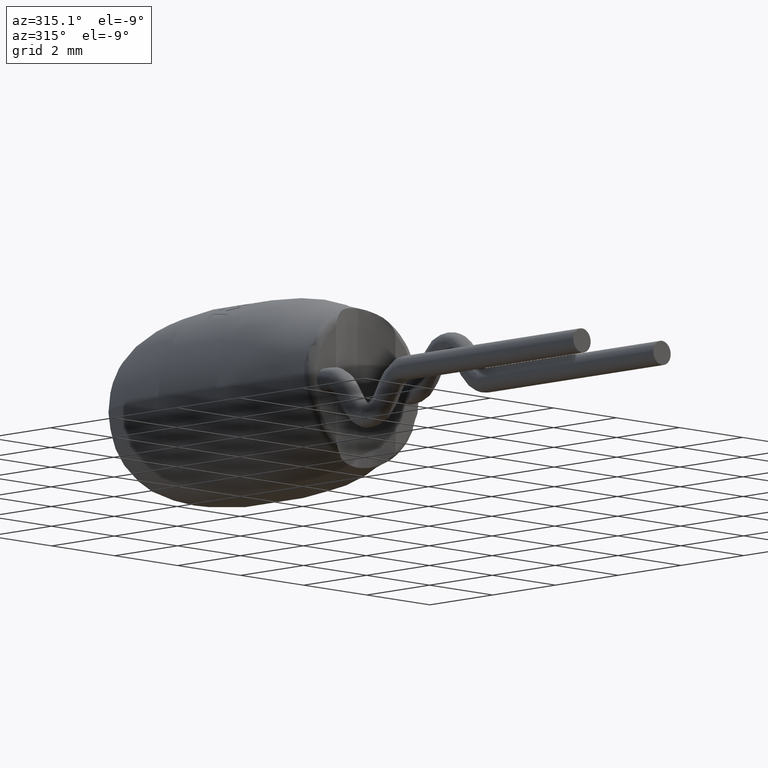
[diagram: clean part render]
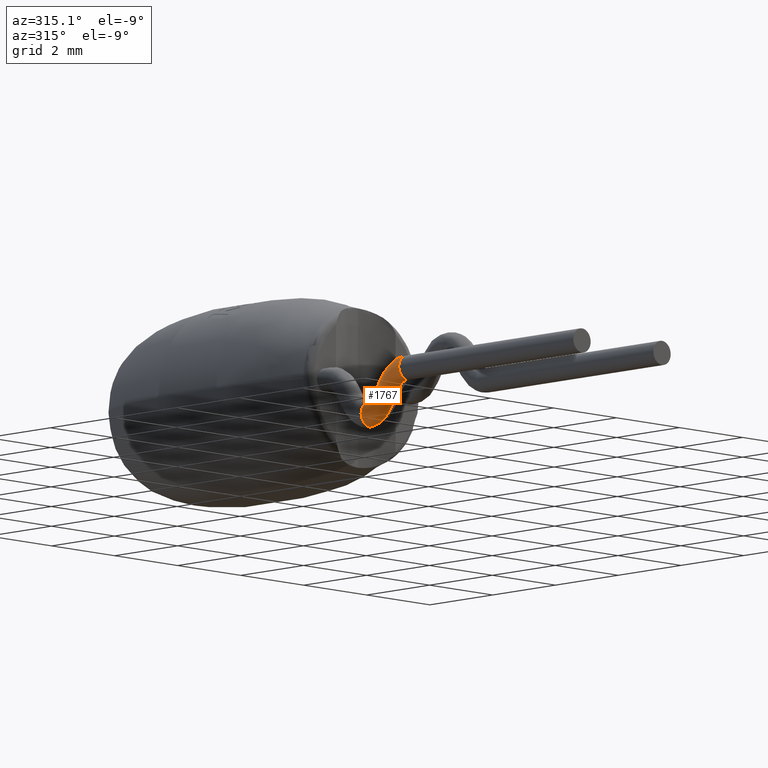
[diagram: same view with one face highlighted and labeled with its STEP entity id]
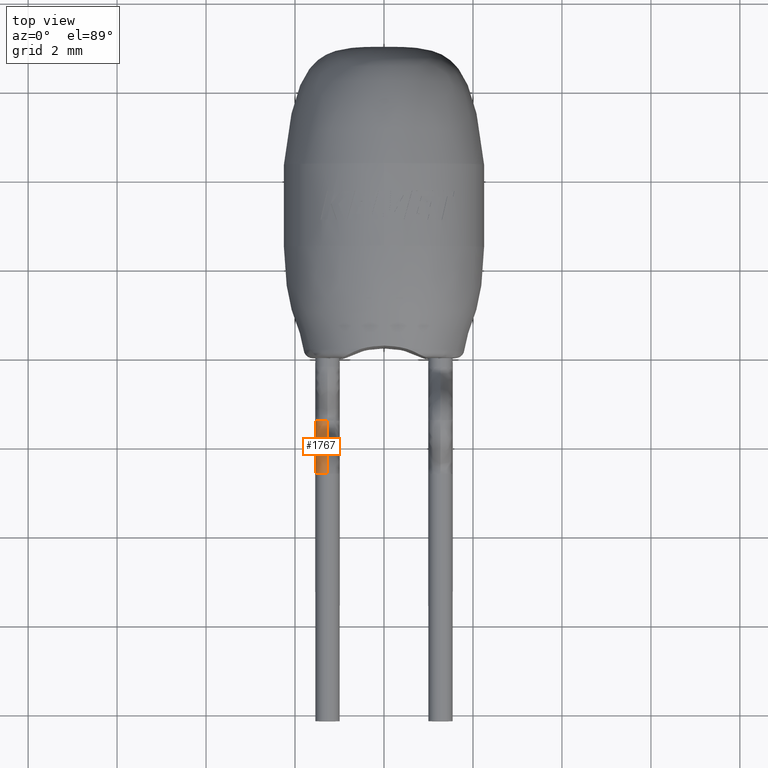
[diagram: same view with one face highlighted and labeled with its STEP entity id]
A machine part, auxiliary view. The second image highlights one B-rep face of the part: STEP entity #1767.
A second angle (top view) of the same face is appended — the face is thin or edge-on in the first view.
In plain terms, the highlighted face is a freeform B-spline surface patch.
Its self-contained STEP definition (entity closure, byte-faithful):
#65 = CARTESIAN_POINT ( 'NONE',  ( -1.270000000000000000, -2.598807271653498700, 0.2750000000000012400 ) ) ;
#96 = CARTESIAN_POINT ( 'NONE',  ( -1.270000000000000200, -2.275627969020396900, 0.2165356289625776100 ) ) ;
#279 = CARTESIAN_POINT ( 'NONE',  ( -1.270000000000000000, -2.134953701157054100, 0.1404459466004463500 ) ) ;
#282 = CARTESIAN_POINT ( 'NONE',  ( -1.820000000000001600, -1.387016746283272100, -0.6675947275303010200 ) ) ;
#324 = CARTESIAN_POINT ( 'NONE',  ( -0.7200000000000003100, -2.449029009757267300, -0.3150518116020774600 ) ) ;
#341 = CARTESIAN_POINT ( 'NONE',  ( -0.7200000000000005300, -2.012715625787380200, -0.9552707868322305500 ) ) ;
#355 = CARTESIAN_POINT ( 'NONE',  ( -1.269999999999999800, -1.498226469308707700, -0.6554652321621995400 ) ) ;
#362 = CARTESIAN_POINT ( 'NONE',  ( -1.270000000000000000, -2.328310198336086300, -0.4416513792238642700 ) ) ;
#365 = CARTESIAN_POINT ( 'NONE',  ( -1.270000000000000000, -1.387016746283271900, -0.6675947275303010200 ) ) ;
#378 = CARTESIAN_POINT ( 'NONE',  ( -0.7200000000000000800, -2.519643191152714800, -0.2803049502678690000 ) ) ;
#394 = CARTESIAN_POINT ( 'NONE',  ( -0.7200000000000002000, -1.414263253716730300, -1.217675312351784300 ) ) ;
#487 = CARTESIAN_POINT ( 'NONE',  ( -1.270000000000000000, -1.855442127965513600, -0.1575598826801195800 ) ) ;
#602 = CARTESIAN_POINT ( 'NONE',  ( -1.270000000000000000, -2.588815079850490100, -0.2751820499733713700 ) ) ;
#690 = CARTESIAN_POINT ( 'NONE',  ( -1.270000000000000000, -1.425479716089040900, -0.6677052793091049500 ) ) ;
#735 = CARTESIAN_POINT ( 'NONE',  ( -1.820000000000000100, -2.011978615179492300, -0.9552686973594229900 ) ) ;
#757 = CARTESIAN_POINT ( 'NONE',  ( -1.819999999999999800, -1.374376652157093500, -0.6675583968752071300 ) ) ;
#768 = CARTESIAN_POINT ( 'NONE',  ( -0.7200000000000002000, -1.424219666946301600, -0.6667534413293756400 ) ) ;
#776 = CARTESIAN_POINT ( 'NONE',  ( -0.7200000000000002000, -2.400194932452871300, -0.3543899629021954300 ) ) ;
#788 = CARTESIAN_POINT ( 'NONE',  ( -1.819999999999999800, -1.577161439697268000, -1.207449184927136700 ) ) ;
#805 = CARTESIAN_POINT ( 'NONE',  ( -0.7200000000000002000, -1.986385301153708700, 0.01578153283555324200 ) ) ;
#819 = CARTESIAN_POINT ( 'NONE',  ( -1.819999999999999800, -2.449758475688342600, 0.2648359517288890200 ) ) ;
#896 = CARTESIAN_POINT ( 'NONE',  ( -1.270000000000000000, -2.598807271653498700, 0.2750000000000012400 ) ) ;
#955 = EDGE_LOOP ( 'NONE', ( #2636, #1406, #3512, #2904 ) ) ;
#1012 = CARTESIAN_POINT ( 'NONE',  ( -1.270000000000000000, -2.602472728346504100, -0.2749999999999990200 ) ) ;
#1099 = EDGE_CURVE ( 'NONE', #2638, #2971, #4701, .T. ) ;
#1142 = CARTESIAN_POINT ( 'NONE',  ( -1.819999999999999600, -2.486623243195783800, -0.2946772177985193500 ) ) ;
#1161 =( BOUNDED_CURVE ( )  B_SPLINE_CURVE ( 3, ( #4118, #3695, #4106, #2883 ),
 .UNSPECIFIED., .F., .F. ) 
 B_SPLINE_CURVE_WITH_KNOTS ( ( 4, 4 ),
 ( 0.0000000000000000000, 0.5000000000000004400 ),
 .UNSPECIFIED. ) 
 CURVE ( )  GEOMETRIC_REPRESENTATION_ITEM ( )  RATIONAL_B_SPLINE_CURVE ( ( 1.000000000000000000, 0.3333333333333327600, 0.3333333333333333700, 1.000000000000000700 ) ) 
 REPRESENTATION_ITEM ( '' )  );
#1162 = CARTESIAN_POINT ( 'NONE',  ( -1.270000000000000000, -1.855442127965513600, -0.1575598826801195800 ) ) ;
#1163 = CARTESIAN_POINT ( 'NONE',  ( -1.820000000000000100, -1.586234961264106200, -0.5981255237946830900 ) ) ;
#1176 = CARTESIAN_POINT ( 'NONE',  ( -1.270000000000000000, -2.598807271653498700, 0.2750000000000012400 ) ) ;
#1180 = CARTESIAN_POINT ( 'NONE',  ( -1.819999999999999800, -1.387016746283272100, -0.6675947275303011400 ) ) ;
#1200 = CARTESIAN_POINT ( 'NONE',  ( -1.819999999999999600, -2.270439292283767500, 0.2164664689279435500 ) ) ;
#1220 = CARTESIAN_POINT ( 'NONE',  ( -1.270000000000000200, -2.489217581564099100, -0.2946426377812027500 ) ) ;
#1372 = EDGE_CURVE ( 'NONE', #2275, #2638, #1777, .T. ) ;
#1395 = CARTESIAN_POINT ( 'NONE',  ( -1.270000000000000000, -2.012347120483435800, -0.9552697420958270500 ) ) ;
#1406 = ORIENTED_EDGE ( 'NONE', *, *, #4525, .T. ) ;
#1551 = CARTESIAN_POINT ( 'NONE',  ( -1.270000000000000000, -1.425479716089040900, -0.6677052793091049500 ) ) ;
#1554 = CARTESIAN_POINT ( 'NONE',  ( -1.819999999999999800, -2.541463638928150600, -0.2800140948938967800 ) ) ;
#1563 = CARTESIAN_POINT ( 'NONE',  ( -1.269999999999999800, -1.985669860460213200, 0.01577204070507338600 ) ) ;
#1571 = CARTESIAN_POINT ( 'NONE',  ( -1.819999999999999600, -1.658996678426534200, -0.5077656682899737200 ) ) ;
#1585 = CARTESIAN_POINT ( 'NONE',  ( -0.7199999999999999700, -1.658417534841369700, -0.5077645111095098200 ) ) ;
#1592 = CARTESIAN_POINT ( 'NONE',  ( -1.819999999999999800, -1.855705656311521500, -0.1575567227682975700 ) ) ;
#1608 = CARTESIAN_POINT ( 'NONE',  ( -1.819999999999999800, -2.328441962509089500, -0.4416497992679530600 ) ) ;
#1625 = CARTESIAN_POINT ( 'NONE',  ( -1.819999999999999600, -2.137339818560843000, -0.7815785909948341800 ) ) ;
#1751 = CARTESIAN_POINT ( 'NONE',  ( -1.269999999999999800, -1.985669860460213200, 0.01577204070507338600 ) ) ;
#1767 = ADVANCED_FACE ( 'NONE', ( #1929 ), #2108, .F. ) ;
#1777 =( BOUNDED_CURVE ( )  B_SPLINE_CURVE ( 3, ( #2327, #2718, #282, #3906 ),
 .UNSPECIFIED., .F., .T. ) 
 B_SPLINE_CURVE_WITH_KNOTS ( ( 4, 4 ),
 ( 0.4999999999999995600, 1.000000000000000000 ),
 .UNSPECIFIED. ) 
 CURVE ( )  GEOMETRIC_REPRESENTATION_ITEM ( )  RATIONAL_B_SPLINE_CURVE ( ( 1.000000000000000700, 0.3333333333333333700, 0.3333333333333327600, 1.000000000000000000 ) ) 
 REPRESENTATION_ITEM ( '' )  );
#1797 = CARTESIAN_POINT ( 'NONE',  ( -1.270000000000000000, -2.239266675602360000, -0.5971785372433968700 ) ) ;
#1834 = CARTESIAN_POINT ( 'NONE',  ( -1.270000000000000000, -1.478277755488472500, -1.217859305347537300 ) ) ;
#1841 = EDGE_CURVE ( 'NONE', #2971, #4639, #1161, .T. ) ;
#1929 = FACE_OUTER_BOUND ( 'NONE', #955, .T. ) ;
#1935 = CARTESIAN_POINT ( 'NONE',  ( -1.270000000000000000, -2.602472728346504100, -0.2749999999999990200 ) ) ;
#1940 = CARTESIAN_POINT ( 'NONE',  ( -1.269999999999999800, -1.985669860460213200, 0.01577204070507338600 ) ) ;
#1957 = CARTESIAN_POINT ( 'NONE',  ( -0.7200000000000002000, -2.614888365375171600, -0.2748345054501036800 ) ) ;
#1971 = CARTESIAN_POINT ( 'NONE',  ( -0.7200000000000002000, -1.749052932079648800, -0.3484562354181983700 ) ) ;
#1977 = CARTESIAN_POINT ( 'NONE',  ( -0.7200000000000002000, -2.239337346730314600, -0.5971782314891769200 ) ) ;
#1991 = CARTESIAN_POINT ( 'NONE',  ( -0.7200000000000002000, -1.476582780020987900, -0.6678521617430025500 ) ) ;
#1996 = CARTESIAN_POINT ( 'NONE',  ( -1.819999999999999200, -1.984954419766718600, 0.01576254857459362000 ) ) ;
#2013 = CARTESIAN_POINT ( 'NONE',  ( -0.7200000000000000800, -1.864688815939192100, -1.081698452559379400 ) ) ;
#2108 =( BOUNDED_SURFACE ( )  B_SPLINE_SURFACE ( 3, 3, ( 
 ( #3126, #690, #3970, #355, #5280, #4446, #2394, #2808, #4869, #1563, #5262, #4855, #2788, #3621, #1176 ),
 ( #3199, #1991, #768, #2377, #4030, #4427, #1585, #1971, #3992, #805, #2830, #4451, #2774, #3608, #3218 ),
 ( #394, #2794, #4016, #2365, #2013, #341, #2342, #1977, #4875, #776, #324, #4413, #378, #1957, #4836 ),
 ( #3660, #4057, #3234, #4859, #3190, #2401, #3167, #3203, #362, #5302, #5284, #1220, #4037, #4819, #4072 ),
 ( #4465, #5268, #788, #3591, #2420, #735, #1625, #2813, #1608, #5248, #4485, #1142, #1554, #3624, #4431 ),
 ( #1180, #757, #5227, #4893, #2756, #1163, #1571, #2383, #1592, #1996, #3645, #1200, #819, #3387, #4898 ),
 ( #3166, #1551, #4450, #3149, #4857, #5267, #3589, #3607, #1162, #1940, #279, #4794, #4035, #2324, #5187 ) ),
 .UNSPECIFIED., .T., .F., .T. ) 
 B_SPLINE_SURFACE_WITH_KNOTS ( ( 4, 3, 4 ),
 ( 4, 1, 1, 1, 1, 1, 1, 1, 1, 1, 1, 1, 4 ),
 ( 0.0000000000000000000, 0.5000000000000000000, 1.000000000000000000 ),
 ( 0.0000000000000000000, 0.06676196542095061400, 0.1253290369074526700, 0.1799231401015714800, 0.2339811183354050300, 0.3472690483902709500, 0.4693182825704661500, 0.5953093153081963100, 0.7212168318413048100, 0.7850492718148344200, 0.8511289488138502600, 0.9217714369437327600, 0.9999999999999998900 ),
 .UNSPECIFIED. ) 
 GEOMETRIC_REPRESENTATION_ITEM ( )  RATIONAL_B_SPLINE_SURFACE ( (
 ( 1.000000000000000000, 1.000000000000000000, 0.9999999999999997800, 1.000000000000000400, 0.9999999999999998900, 1.000000000000000000, 1.000000000000000200, 1.000000000000000400, 0.9999999999999997800, 1.000000000000000200, 1.000000000000000000, 1.000000000000000200, 0.9999999999999997800, 1.000000000000000000, 1.000000000000000000),
 ( 0.3333333333333333700, 0.3333333333333333700, 0.3333333333333333100, 0.3333333333333334300, 0.3333333333333333700, 0.3333333333333332600, 0.3333333333333334800, 0.3333333333333334300, 0.3333333333333333700, 0.3333333333333334800, 0.3333333333333333100, 0.3333333333333334800, 0.3333333333333333700, 0.3333333333333333700, 0.3333333333333333700),
 ( 0.3333333333333333700, 0.3333333333333333700, 0.3333333333333333100, 0.3333333333333334300, 0.3333333333333333700, 0.3333333333333332600, 0.3333333333333334800, 0.3333333333333334300, 0.3333333333333333700, 0.3333333333333334800, 0.3333333333333333100, 0.3333333333333334800, 0.3333333333333333700, 0.3333333333333333700, 0.3333333333333333700),
 ( 1.000000000000000000, 1.000000000000000000, 0.9999999999999997800, 1.000000000000000400, 0.9999999999999998900, 1.000000000000000000, 1.000000000000000200, 1.000000000000000400, 0.9999999999999997800, 1.000000000000000200, 1.000000000000000000, 1.000000000000000200, 0.9999999999999997800, 1.000000000000000000, 1.000000000000000000),
 ( 0.3333333333333333700, 0.3333333333333333700, 0.3333333333333333100, 0.3333333333333334300, 0.3333333333333333700, 0.3333333333333332600, 0.3333333333333334800, 0.3333333333333334300, 0.3333333333333333700, 0.3333333333333334800, 0.3333333333333333100, 0.3333333333333334800, 0.3333333333333333700, 0.3333333333333333700, 0.3333333333333333700),
 ( 0.3333333333333333700, 0.3333333333333333700, 0.3333333333333333100, 0.3333333333333334300, 0.3333333333333333700, 0.3333333333333332600, 0.3333333333333334800, 0.3333333333333334300, 0.3333333333333333700, 0.3333333333333334800, 0.3333333333333333100, 0.3333333333333334800, 0.3333333333333333700, 0.3333333333333333700, 0.3333333333333333700),
 ( 1.000000000000000000, 1.000000000000000000, 0.9999999999999997800, 1.000000000000000400, 0.9999999999999998900, 1.000000000000000000, 1.000000000000000200, 1.000000000000000400, 0.9999999999999997800, 1.000000000000000200, 1.000000000000000000, 1.000000000000000200, 0.9999999999999997800, 1.000000000000000000, 1.000000000000000000) ) ) 
 REPRESENTATION_ITEM ( '' )  SURFACE ( )  );
#2127 = CARTESIAN_POINT ( 'NONE',  ( -1.270000000000000000, -1.534178258447042700, -0.6377827793507751000 ) ) ;
#2143 = CARTESIAN_POINT ( 'NONE',  ( -1.270000000000000000, -1.387016746283271900, -0.6675947275303010200 ) ) ;
#2223 = CARTESIAN_POINT ( 'NONE',  ( -1.269999999999999800, -2.399837212106124400, -0.3543947089674358000 ) ) ;
#2275 = VERTEX_POINT ( 'NONE', #3394 ) ;
#2324 = CARTESIAN_POINT ( 'NONE',  ( -1.270000000000000000, -2.559076337632803200, 0.2744704055033617700 ) ) ;
#2327 = CARTESIAN_POINT ( 'NONE',  ( -1.270000000000000000, -1.414263253716730300, -1.217675312351784700 ) ) ;
#2342 = CARTESIAN_POINT ( 'NONE',  ( -0.7199999999999999700, -2.137050246768260800, -0.7815780124046019000 ) ) ;
#2365 = CARTESIAN_POINT ( 'NONE',  ( -0.7200000000000002000, -1.732993763380390000, -1.159158037826975000 ) ) ;
#2377 = CARTESIAN_POINT ( 'NONE',  ( -0.7200000000000002000, -1.503072433786849700, -0.6554791590705197900 ) ) ;
#2383 = CARTESIAN_POINT ( 'NONE',  ( -1.820000000000000300, -1.748770247567829500, -0.3484574584350761900 ) ) ;
#2394 = CARTESIAN_POINT ( 'NONE',  ( -1.269999999999999800, -1.658707106633951800, -0.5077650896997418800 ) ) ;
#2401 = CARTESIAN_POINT ( 'NONE',  ( -1.270000000000000000, -2.012347120483435800, -0.9552697420958270500 ) ) ;
#2420 = CARTESIAN_POINT ( 'NONE',  ( -1.819999999999999600, -1.865905376901739100, -1.081701943910463800 ) ) ;
#2506 = CARTESIAN_POINT ( 'NONE',  ( -1.270000000000000000, -1.748911589823738600, -0.3484568469266372000 ) ) ;
#2526 = CARTESIAN_POINT ( 'NONE',  ( -1.270000000000000000, -2.559076337632803200, 0.2744704055033617700 ) ) ;
#2626 = CARTESIAN_POINT ( 'NONE',  ( -1.270000000000000200, -2.489217581564099100, -0.2946426377812027500 ) ) ;
#2636 = ORIENTED_EDGE ( 'NONE', *, *, #1372, .F. ) ;
#2638 = VERTEX_POINT ( 'NONE', #365 ) ;
#2663 = CARTESIAN_POINT ( 'NONE',  ( -1.270000000000000200, -1.566786230298983700, -1.207419364355557700 ) ) ;
#2718 = CARTESIAN_POINT ( 'NONE',  ( -1.820000000000000300, -1.414263253716730300, -1.217675312351784700 ) ) ;
#2756 = CARTESIAN_POINT ( 'NONE',  ( -1.819999999999999600, -1.535394819409588600, -0.6377862707018595600 ) ) ;
#2774 = CARTESIAN_POINT ( 'NONE',  ( -0.7200000000000000800, -2.406117580137471500, 0.2642542409809445800 ) ) ;
#2788 = CARTESIAN_POINT ( 'NONE',  ( -1.270000000000000000, -2.427938027912907700, 0.2645450963549166300 ) ) ;
#2794 = CARTESIAN_POINT ( 'NONE',  ( -0.7200000000000002000, -1.503829287454446100, -1.217932746564485800 ) ) ;
#2808 = CARTESIAN_POINT ( 'NONE',  ( -1.270000000000000000, -1.748911589823738800, -0.3484568469266372000 ) ) ;
#2813 = CARTESIAN_POINT ( 'NONE',  ( -1.820000000000000300, -2.239196004474404100, -0.5971788429976157000 ) ) ;
#2830 = CARTESIAN_POINT ( 'NONE',  ( -0.7200000000000003100, -2.133682417882744700, 0.1404290097429020900 ) ) ;
#2883 = CARTESIAN_POINT ( 'NONE',  ( -1.270000000000000000, -2.602472728346504100, -0.2749999999999990200 ) ) ;
#2904 = ORIENTED_EDGE ( 'NONE', *, *, #1099, .F. ) ;
#2971 = VERTEX_POINT ( 'NONE', #896 ) ;
#3126 = CARTESIAN_POINT ( 'NONE',  ( -1.270000000000000000, -1.387016746283271900, -0.6675947275303010200 ) ) ;
#3149 = CARTESIAN_POINT ( 'NONE',  ( -1.269999999999999800, -1.498226469308707700, -0.6554652321621995400 ) ) ;
#3166 = CARTESIAN_POINT ( 'NONE',  ( -1.270000000000000000, -1.387016746283271900, -0.6675947275303010200 ) ) ;
#3167 = CARTESIAN_POINT ( 'NONE',  ( -1.269999999999999800, -2.137195032664551700, -0.7815783016997180900 ) ) ;
#3190 = CARTESIAN_POINT ( 'NONE',  ( -1.270000000000000000, -1.865297096420466300, -1.081700198234921900 ) ) ;
#3199 = CARTESIAN_POINT ( 'NONE',  ( -0.7200000000000002000, -1.387016746283272100, -0.6675947275303011400 ) ) ;
#3203 = CARTESIAN_POINT ( 'NONE',  ( -1.270000000000000000, -2.239266675602360000, -0.5971785372433968700 ) ) ;
#3218 = CARTESIAN_POINT ( 'NONE',  ( -0.7200000000000002000, -2.598807271653498700, 0.2750000000000011300 ) ) ;
#3234 = CARTESIAN_POINT ( 'NONE',  ( -1.270000000000000200, -1.566786230298983700, -1.207419364355557700 ) ) ;
#3327 = CARTESIAN_POINT ( 'NONE',  ( -1.269999999999999800, -1.498226469308708000, -0.6554652321621995400 ) ) ;
#3344 = CARTESIAN_POINT ( 'NONE',  ( -1.270000000000000000, -2.427938027912907700, 0.2645450963549166300 ) ) ;
#3363 = CARTESIAN_POINT ( 'NONE',  ( -1.270000000000000000, -2.134953701157054100, 0.1404459466004463500 ) ) ;
#3387 = CARTESIAN_POINT ( 'NONE',  ( -1.819999999999999800, -2.506929766583440700, 0.2737753164568272900 ) ) ;
#3394 = CARTESIAN_POINT ( 'NONE',  ( -1.270000000000000000, -1.414263253716730300, -1.217675312351784700 ) ) ;
#3414 = CARTESIAN_POINT ( 'NONE',  ( -1.270000000000000000, -1.865297096420466000, -1.081700198234921900 ) ) ;
#3512 = ORIENTED_EDGE ( 'NONE', *, *, #1841, .F. ) ;
#3589 = CARTESIAN_POINT ( 'NONE',  ( -1.269999999999999800, -1.658707106633951800, -0.5077650896997418800 ) ) ;
#3591 = CARTESIAN_POINT ( 'NONE',  ( -1.820000000000000300, -1.728147798902248200, -1.159144110918654400 ) ) ;
#3607 = CARTESIAN_POINT ( 'NONE',  ( -1.270000000000000000, -1.748911589823738800, -0.3484568469266372000 ) ) ;
#3608 = CARTESIAN_POINT ( 'NONE',  ( -0.7200000000000002000, -2.611222908682166100, 0.2751654945498959200 ) ) ;
#3621 = CARTESIAN_POINT ( 'NONE',  ( -1.270000000000000000, -2.559076337632803200, 0.2744704055033617700 ) ) ;
#3624 = CARTESIAN_POINT ( 'NONE',  ( -1.819999999999999800, -2.562741794325808600, -0.2755295944966380500 ) ) ;
#3645 = CARTESIAN_POINT ( 'NONE',  ( -1.820000000000000500, -2.136224984431365200, 0.1404628834579904900 ) ) ;
#3660 = CARTESIAN_POINT ( 'NONE',  ( -1.270000000000000000, -1.414263253716730300, -1.217675312351784700 ) ) ;
#3695 = CARTESIAN_POINT ( 'NONE',  ( -1.820000000000001600, -2.598807271653499100, 0.2750000000000011900 ) ) ;
#3787 = CARTESIAN_POINT ( 'NONE',  ( -1.269999999999999800, -1.658707106633951800, -0.5077650896997418800 ) ) ;
#3846 = CARTESIAN_POINT ( 'NONE',  ( -1.269999999999999800, -1.730570781141319100, -1.159151074372815500 ) ) ;
#3906 = CARTESIAN_POINT ( 'NONE',  ( -1.270000000000000000, -1.387016746283271900, -0.6675947275303010200 ) ) ;
#3930 = B_SPLINE_CURVE_WITH_KNOTS ( 'NONE', 3,
 ( #5138, #1834, #2663, #3846, #3414, #1395, #4248, #1797, #4682, #2223, #5102, #2626, #4698, #602, #1012 ),
 .UNSPECIFIED., .F., .F.,
 ( 4, 1, 1, 1, 1, 1, 1, 1, 1, 1, 1, 1, 4 ),
 ( 0.0000000000000000000, 0.06676196542095061400, 0.1253290369074526700, 0.1799231401015714800, 0.2339811183354050300, 0.3472690483902709500, 0.4693182825704661500, 0.5953093153081963100, 0.7212168318413048100, 0.7850492718148344200, 0.8511289488138502600, 0.9217714369437327600, 0.9999999999999998900 ),
 .UNSPECIFIED. ) ;
#3970 = CARTESIAN_POINT ( 'NONE',  ( -1.270000000000000200, -1.444970085742871100, -0.6668130824725334600 ) ) ;
#3992 = CARTESIAN_POINT ( 'NONE',  ( -0.7200000000000000800, -1.855178599619505400, -0.1575630425919415700 ) ) ;
#4016 = CARTESIAN_POINT ( 'NONE',  ( -0.7200000000000002000, -1.556411020900698500, -1.207389543783978600 ) ) ;
#4030 = CARTESIAN_POINT ( 'NONE',  ( -0.7200000000000000800, -1.532961697484496600, -0.6377792879996910800 ) ) ;
#4035 = CARTESIAN_POINT ( 'NONE',  ( -1.270000000000000000, -2.427938027912907700, 0.2645450963549166300 ) ) ;
#4037 = CARTESIAN_POINT ( 'NONE',  ( -1.270000000000000000, -2.530553415040433000, -0.2801595225808836100 ) ) ;
#4057 = CARTESIAN_POINT ( 'NONE',  ( -1.270000000000000000, -1.478277755488472500, -1.217859305347537300 ) ) ;
#4072 = CARTESIAN_POINT ( 'NONE',  ( -1.270000000000000000, -2.602472728346504100, -0.2749999999999990200 ) ) ;
#4106 = CARTESIAN_POINT ( 'NONE',  ( -1.820000000000000300, -2.602472728346504100, -0.2749999999999990200 ) ) ;
#4118 = CARTESIAN_POINT ( 'NONE',  ( -1.270000000000000000, -2.598807271653498700, 0.2750000000000012400 ) ) ;
#4248 = CARTESIAN_POINT ( 'NONE',  ( -1.269999999999999800, -2.137195032664551700, -0.7815783016997180900 ) ) ;
#4413 = CARTESIAN_POINT ( 'NONE',  ( -0.7199999999999999700, -2.491811919932413100, -0.2946080577638853800 ) ) ;
#4427 = CARTESIAN_POINT ( 'NONE',  ( -0.7200000000000005300, -1.587708982479880900, -0.5981297027402989700 ) ) ;
#4431 = CARTESIAN_POINT ( 'NONE',  ( -1.819999999999999800, -2.602472728346504100, -0.2749999999999985200 ) ) ;
#4446 = CARTESIAN_POINT ( 'NONE',  ( -1.270000000000000000, -1.586971971871993200, -0.5981276132674909800 ) ) ;
#4450 = CARTESIAN_POINT ( 'NONE',  ( -1.270000000000000200, -1.444970085742871100, -0.6668130824725334600 ) ) ;
#4451 = CARTESIAN_POINT ( 'NONE',  ( -0.7199999999999999700, -2.280816645757025400, 0.2166047889972115000 ) ) ;
#4465 = CARTESIAN_POINT ( 'NONE',  ( -1.819999999999999800, -1.414263253716730300, -1.217675312351784300 ) ) ;
#4485 = CARTESIAN_POINT ( 'NONE',  ( -1.820000000000000500, -2.450300293031578000, -0.3150348747445332900 ) ) ;
#4525 = EDGE_CURVE ( 'NONE', #2275, #4639, #3930, .T. ) ;
#4568 = CARTESIAN_POINT ( 'NONE',  ( -1.270000000000000200, -1.444970085742871100, -0.6668130824725333500 ) ) ;
#4583 = CARTESIAN_POINT ( 'NONE',  ( -1.270000000000000000, -1.586971971871993200, -0.5981276132674909800 ) ) ;
#4639 = VERTEX_POINT ( 'NONE', #1935 ) ;
#4682 = CARTESIAN_POINT ( 'NONE',  ( -1.270000000000000000, -2.328310198336086300, -0.4416513792238642700 ) ) ;
#4698 = CARTESIAN_POINT ( 'NONE',  ( -1.270000000000000000, -2.530553415040433000, -0.2801595225808836100 ) ) ;
#4701 = B_SPLINE_CURVE_WITH_KNOTS ( 'NONE', 3,
 ( #2143, #5034, #4568, #3327, #2127, #4583, #3787, #2506, #487, #1751, #3363, #96, #3344, #2526, #65 ),
 .UNSPECIFIED., .F., .F.,
 ( 4, 1, 1, 1, 1, 1, 1, 1, 1, 1, 1, 1, 4 ),
 ( 0.0000000000000000000, 0.06676196542095061400, 0.1253290369074526700, 0.1799231401015714800, 0.2339811183354050300, 0.3472690483902709500, 0.4693182825704661500, 0.5953093153081963100, 0.7212168318413048100, 0.7850492718148344200, 0.8511289488138502600, 0.9217714369437327600, 0.9999999999999998900 ),
 .UNSPECIFIED. ) ;
#4794 = CARTESIAN_POINT ( 'NONE',  ( -1.270000000000000200, -2.275627969020396900, 0.2165356289625776100 ) ) ;
#4819 = CARTESIAN_POINT ( 'NONE',  ( -1.270000000000000000, -2.588815079850490100, -0.2751820499733713700 ) ) ;
#4836 = CARTESIAN_POINT ( 'NONE',  ( -0.7200000000000002000, -2.602472728346504100, -0.2749999999999985200 ) ) ;
#4855 = CARTESIAN_POINT ( 'NONE',  ( -1.270000000000000200, -2.275627969020396900, 0.2165356289625776100 ) ) ;
#4857 = CARTESIAN_POINT ( 'NONE',  ( -1.270000000000000000, -1.534178258447042900, -0.6377827793507751000 ) ) ;
#4859 = CARTESIAN_POINT ( 'NONE',  ( -1.269999999999999800, -1.730570781141319300, -1.159151074372815500 ) ) ;
#4869 = CARTESIAN_POINT ( 'NONE',  ( -1.270000000000000000, -1.855442127965513600, -0.1575598826801195800 ) ) ;
#4875 = CARTESIAN_POINT ( 'NONE',  ( -0.7200000000000000800, -2.328178434163081300, -0.4416529591797751000 ) ) ;
#4893 = CARTESIAN_POINT ( 'NONE',  ( -1.820000000000000300, -1.493380504830566800, -0.6554513052538789600 ) ) ;
#4898 = CARTESIAN_POINT ( 'NONE',  ( -1.819999999999999800, -2.598807271653498700, 0.2750000000000011300 ) ) ;
#5034 = CARTESIAN_POINT ( 'NONE',  ( -1.270000000000000000, -1.425479716089040900, -0.6677052793091049500 ) ) ;
#5102 = CARTESIAN_POINT ( 'NONE',  ( -1.270000000000000000, -2.449664651394422700, -0.3150433431733056800 ) ) ;
#5138 = CARTESIAN_POINT ( 'NONE',  ( -1.270000000000000000, -1.414263253716730300, -1.217675312351784700 ) ) ;
#5187 = CARTESIAN_POINT ( 'NONE',  ( -1.270000000000000000, -2.598807271653498700, 0.2750000000000012400 ) ) ;
#5227 = CARTESIAN_POINT ( 'NONE',  ( -1.819999999999999800, -1.465720504539439500, -0.6668727236156918300 ) ) ;
#5248 = CARTESIAN_POINT ( 'NONE',  ( -1.819999999999999200, -2.399479491759375800, -0.3543994550326752800 ) ) ;
#5262 = CARTESIAN_POINT ( 'NONE',  ( -1.270000000000000000, -2.134953701157054100, 0.1404459466004463500 ) ) ;
#5267 = CARTESIAN_POINT ( 'NONE',  ( -1.270000000000000000, -1.586971971871993200, -0.5981276132674909800 ) ) ;
#5268 = CARTESIAN_POINT ( 'NONE',  ( -1.819999999999999800, -1.452726223522498700, -1.217785864130587900 ) ) ;
#5280 = CARTESIAN_POINT ( 'NONE',  ( -1.270000000000000000, -1.534178258447042900, -0.6377827793507751000 ) ) ;
#5284 = CARTESIAN_POINT ( 'NONE',  ( -1.270000000000000000, -2.449664651394422700, -0.3150433431733056800 ) ) ;
#5302 = CARTESIAN_POINT ( 'NONE',  ( -1.269999999999999800, -2.399837212106124400, -0.3543947089674358000 ) ) ;